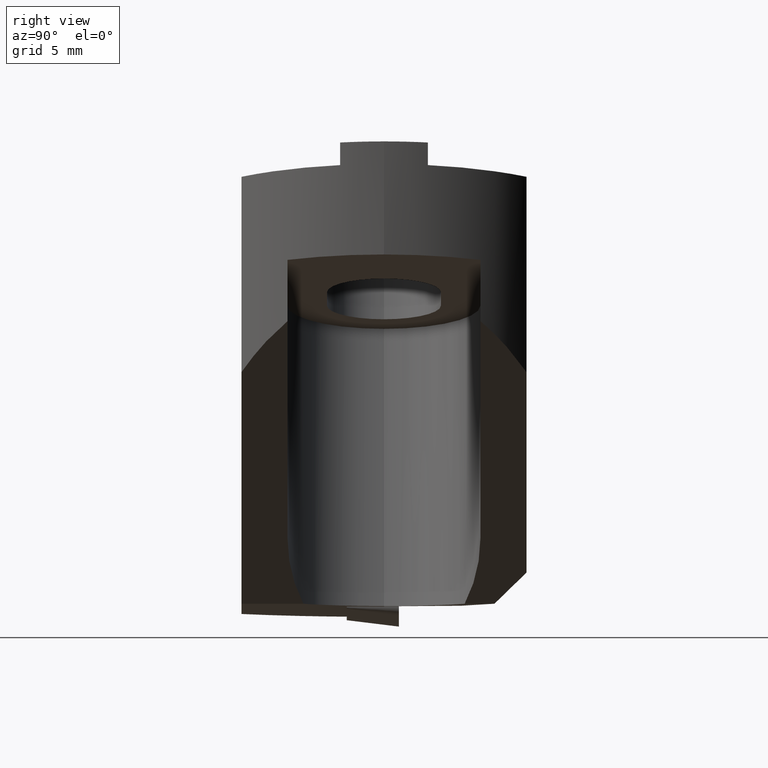
[diagram: clean part render]
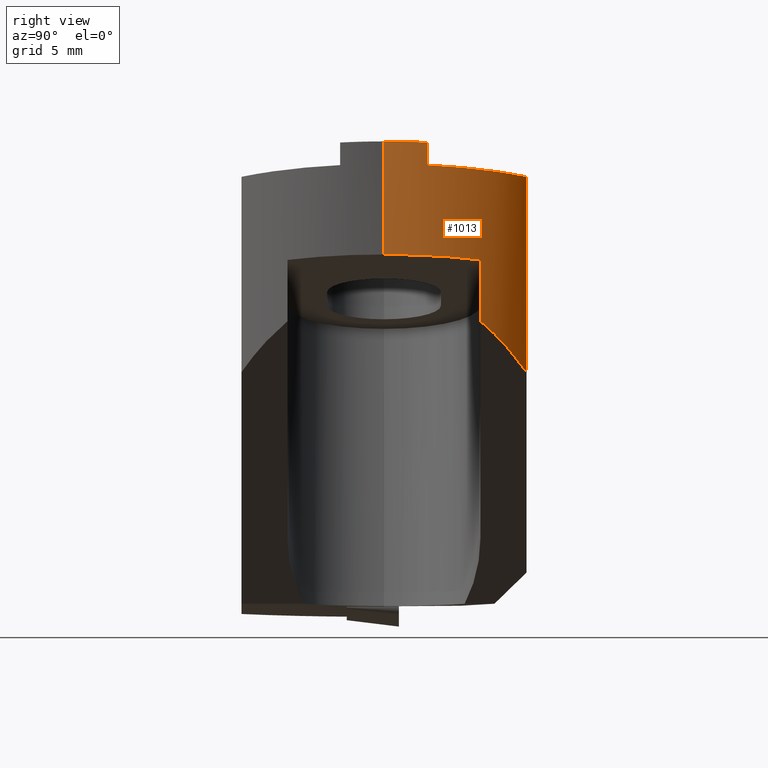
[diagram: same view with one face highlighted and labeled with its STEP entity id]
A machine part, right view. The second image highlights one B-rep face of the part: STEP entity #1013.
In plain terms, the highlighted cylindrical surface (partial cylindrical patch) has radius 10.2 mm, axis along (0, -0, 1).
Its self-contained STEP definition (entity closure, byte-faithful):
#615=EDGE_CURVE('NONE',#1359,#1107,#1721,.F.);
#631=VERTEX_POINT('NONE',#1739);
#747=EDGE_CURVE('NONE',#1627,#1115,#1868,.T.);
#759=EDGE_CURVE('NONE',#1115,#631,#1880,.T.);
#851=VERTEX_POINT('NONE',#1984);
#1013=ADVANCED_FACE('NONE',(#2167),#2168,.T.);
#1045=VERTEX_POINT('NONE',#2203);
#1085=VERTEX_POINT('NONE',#2247);
#1107=VERTEX_POINT('NONE',#2270);
#1115=VERTEX_POINT('NONE',#2279);
#1169=EDGE_CURVE('NONE',#1045,#851,#2338,.T.);
#1209=EDGE_CURVE('NONE',#1107,#1045,#2383,.F.);
#1219=EDGE_CURVE('NONE',#851,#1627,#2394,.F.);
#1359=VERTEX_POINT('NONE',#2551);
#1473=EDGE_CURVE('NONE',#1085,#1359,#2673,.T.);
#1527=EDGE_CURVE('NONE',#631,#1085,#2729,.T.);
#1627=VERTEX_POINT('NONE',#2837);
#1721=ELLIPSE('',#2951,10.5122590193689,10.2);
#1739=CARTESIAN_POINT('',(9.20217365626187,4.4,-5.40185419621802));
#1868=ELLIPSE('',#3153,20.4,10.2);
#1880=LINE('',#3169,#3170);
#1984=CARTESIAN_POINT('',(7.86066154976793,6.5,-1.61387621312051));
#2167=FACE_OUTER_BOUND('',#3543,.T.);
#2168=CYLINDRICAL_SURFACE('',#3544,10.2);
#2203=CARTESIAN_POINT('',(10.00199980004,2.0,-1.07998062376848));
#2247=CARTESIAN_POINT('',(10.2,0.0,-5.15306814674949));
#2270=CARTESIAN_POINT('',(10.00199980004,2.0,-0.0493669944185759));
#2279=CARTESIAN_POINT('',(9.20217365626187,4.4,-8.19828592448512));
#2338=ELLIPSE('',#4168,10.5122590193689,10.2);
#2383=LINE('',#4226,#4227);
#2394=LINE('',#4241,#4242);
#2551=CARTESIAN_POINT('',(10.2,0.0,-1.2491397351303E-015));
#2673=LINE('',#4628,#4629);
#2729=ELLIPSE('',#4717,10.5122590193689,10.2);
#2837=CARTESIAN_POINT('',(7.86066154976793,6.5,-10.5218530519014));
#2951=AXIS2_PLACEMENT_3D('',#4946,#4947,#4948);
#3153=AXIS2_PLACEMENT_3D('',#5126,#5127,#5128);
#3169=CARTESIAN_POINT('',(9.20217365626187,4.4,-25.0));
#3170=VECTOR('',#5133,1.0);
#3543=EDGE_LOOP('',(#5565,#5566,#5567,#5568,#5569,#5570,#5571,#5572));
#3544=AXIS2_PLACEMENT_3D('',#5573,#5574,#5575);
#4168=AXIS2_PLACEMENT_3D('',#5758,#5759,#5760);
#4226=CARTESIAN_POINT('',(10.00199980004,2.0,-25.0));
#4227=VECTOR('',#5829,1.0);
#4241=CARTESIAN_POINT('',(7.86066154976793,6.5,-25.0));
#4242=VECTOR('',#5839,1.0);
#4628=CARTESIAN_POINT('',(10.2,0.0,-25.0));
#4629=VECTOR('',#6162,1000.0);
#4717=AXIS2_PLACEMENT_3D('',#6213,#6214,#6215);
#4946=CARTESIAN_POINT('',(-3.11445515432088E-016,0.0,-2.54314562900036));
#4947=DIRECTION('',(0.241921895599661,0.0,-0.970295726275998));
#4948=DIRECTION('',(0.970295726275998,0.0,0.241921895599661));
#5126=CARTESIAN_POINT('',(-2.95591996604715E-015,0.0,-24.1369182372025));
#5127=DIRECTION('',(0.866025403784439,0.0,-0.5));
#5128=DIRECTION('',(0.5,0.0,0.866025403784438));
#5133=DIRECTION('',(1.22464679914735E-016,-0.0,1.0));
#5565=ORIENTED_EDGE('',*,*,#1473,.F.);
#5566=ORIENTED_EDGE('',*,*,#1527,.F.);
#5567=ORIENTED_EDGE('',*,*,#759,.F.);
#5568=ORIENTED_EDGE('',*,*,#747,.F.);
#5569=ORIENTED_EDGE('',*,*,#1219,.F.);
#5570=ORIENTED_EDGE('',*,*,#1169,.F.);
#5571=ORIENTED_EDGE('',*,*,#1209,.F.);
#5572=ORIENTED_EDGE('',*,*,#615,.F.);
#5573=CARTESIAN_POINT('',(-3.06161699786838E-015,0.0,-25.0));
#5574=DIRECTION('',(1.22464679914735E-016,-0.0,1.0));
#5575=DIRECTION('',(1.0,0.0,-1.22464679914735E-016));
#5758=CARTESIAN_POINT('',(-4.37659283666187E-016,0.0,-3.57375925835026));
#5759=DIRECTION('',(-0.241921895599661,0.0,0.970295726275998));
#5760=DIRECTION('',(0.970295726275998,0.0,0.241921895599661));
#5829=DIRECTION('',(1.22464679914735E-016,-0.0,1.0));
#5839=DIRECTION('',(1.22464679914735E-016,-0.0,1.0));
#6162=DIRECTION('',(1.22464679914735E-016,0.0,1.0));
#6213=CARTESIAN_POINT('',(-9.42514356602582E-016,0.0,-7.69621377574985));
#6214=DIRECTION('',(0.241921895599661,0.0,-0.970295726275998));
#6215=DIRECTION('',(0.970295726275998,0.0,0.241921895599661));